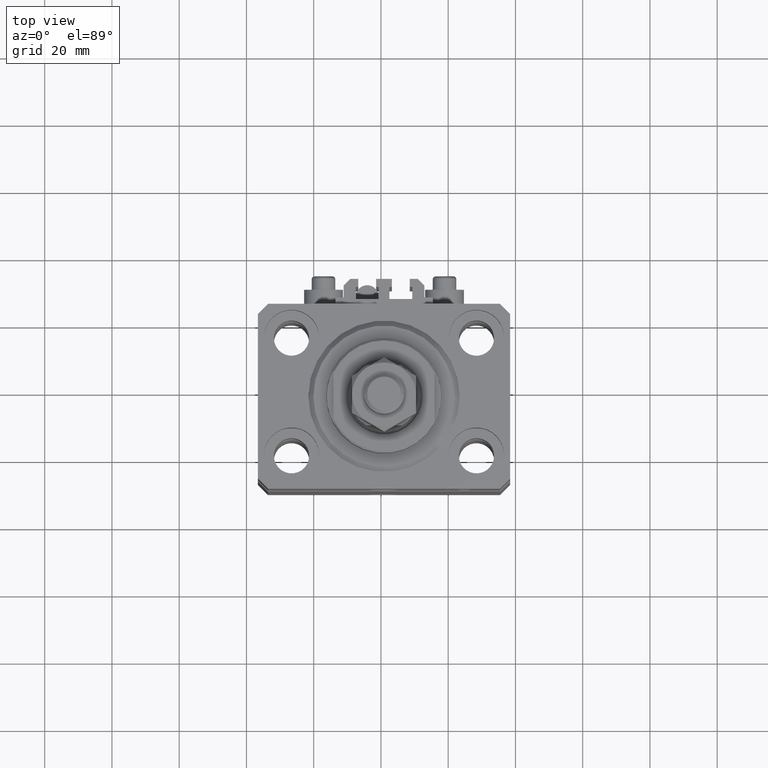
[diagram: clean part render]
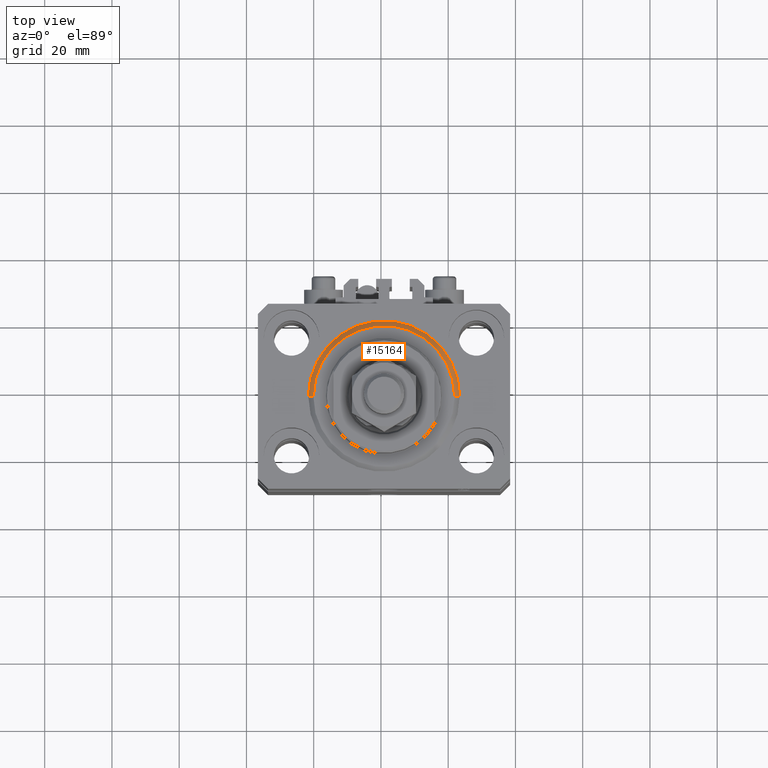
[diagram: same view with one face highlighted and labeled with its STEP entity id]
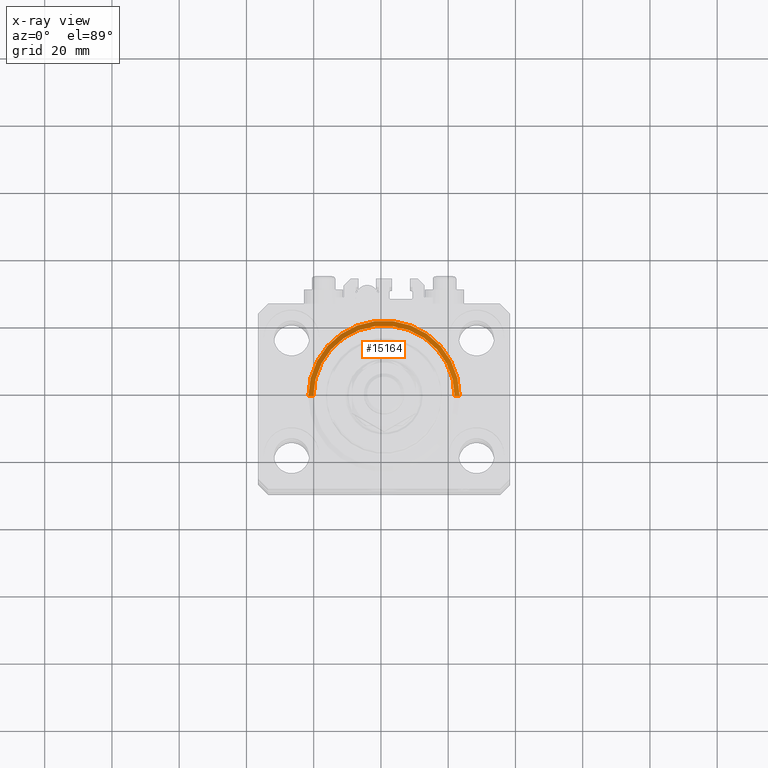
[diagram: x-ray of the same camera — body ghosted, the highlighted face saturated]
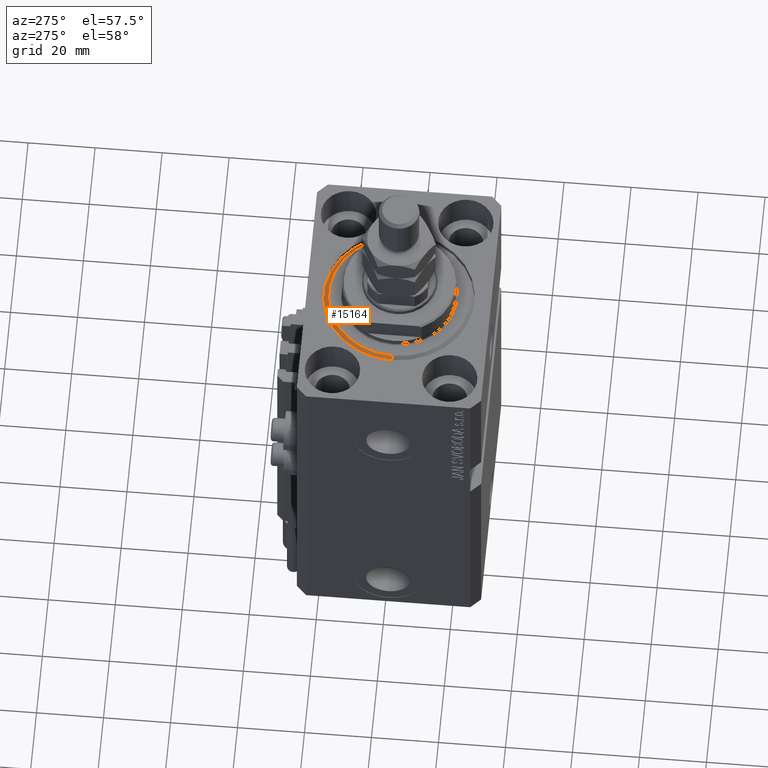
[diagram: same view with one face highlighted and labeled with its STEP entity id]
A machine part, top view. The second image highlights one B-rep face of the part: STEP entity #15164.
The next image is the same camera in x-ray: the body ghosted, the highlighted face saturated — about 0% of this face is hidden behind the body in this view.
A second angle (auxiliary view) of the same face is appended — the face is thin or edge-on in the first view.
In plain terms, the highlighted conical surface has half-angle 45 deg.
Its self-contained STEP definition (entity closure, byte-faithful):
#3301 = FACE_OUTER_BOUND ( 'NONE', #18932, .T. ) ;
#3866 = CARTESIAN_POINT ( 'NONE',  ( 22.50000000000000355, 0.000000000000000000, 1.500000000000039524 ) ) ;
#4105 = AXIS2_PLACEMENT_3D ( 'NONE', #23042, #35213, #4146 ) ;
#4146 = DIRECTION ( 'NONE',  ( 1.000000000000000000, 0.000000000000000000, 0.000000000000000000 ) ) ;
#6168 = VECTOR ( 'NONE', #23262, 1000.000000000000114 ) ;
#7009 = LINE ( 'NONE', #40321, #48604 ) ;
#7425 = ORIENTED_EDGE ( 'NONE', *, *, #41884, .F. ) ;
#8626 = CIRCLE ( 'NONE', #19725, 20.99999999999995381 ) ;
#11004 = DIRECTION ( 'NONE',  ( 1.000000000000000000, 0.000000000000000000, 0.000000000000000000 ) ) ;
#11713 = AXIS2_PLACEMENT_3D ( 'NONE', #22191, #40838, #11004 ) ;
#14628 = DIRECTION ( 'NONE',  ( -0.000000000000000000, -0.000000000000000000, -1.000000000000000000 ) ) ;
#15164 = ADVANCED_FACE ( 'NONE', ( #3301 ), #21995, .T. ) ;
#18932 = EDGE_LOOP ( 'NONE', ( #7425, #45377, #25243, #39716 ) ) ;
#19522 = CARTESIAN_POINT ( 'NONE',  ( 22.50000000000000355, 2.755455298081544383E-15, 1.500000000000039524 ) ) ;
#19725 = AXIS2_PLACEMENT_3D ( 'NONE', #22837, #14628, #26568 ) ;
#21995 = CONICAL_SURFACE ( 'NONE', #11713, 22.50000000000000355, 0.7853981633974517207 ) ;
#22162 = DIRECTION ( 'NONE',  ( -0.7071067811865500152, 8.659560562354962440E-17, 0.7071067811865451302 ) ) ;
#22191 = CARTESIAN_POINT ( 'NONE',  ( 0.000000000000000000, 0.000000000000000000, 1.500000000000039524 ) ) ;
#22739 = VERTEX_POINT ( 'NONE', #39984 ) ;
#22837 = CARTESIAN_POINT ( 'NONE',  ( 0.000000000000000000, 0.000000000000000000, 0.000000000000000000 ) ) ;
#23042 = CARTESIAN_POINT ( 'NONE',  ( 0.000000000000000000, 0.000000000000000000, 1.500000000000039524 ) ) ;
#23262 = DIRECTION ( 'NONE',  ( 0.7071067811865500152, 0.000000000000000000, 0.7071067811865451302 ) ) ;
#24728 = CARTESIAN_POINT ( 'NONE',  ( -20.99999999999995381, 2.663606788145490261E-15, 0.000000000000000000 ) ) ;
#25243 = ORIENTED_EDGE ( 'NONE', *, *, #31079, .F. ) ;
#25732 = VERTEX_POINT ( 'NONE', #48878 ) ;
#26568 = DIRECTION ( 'NONE',  ( 1.000000000000000000, 0.000000000000000000, 0.000000000000000000 ) ) ;
#26748 = LINE ( 'NONE', #3866, #6168 ) ;
#31079 = EDGE_CURVE ( 'NONE', #39204, #25732, #32669, .T. ) ;
#31520 = EDGE_CURVE ( 'NONE', #39909, #25732, #7009, .T. ) ;
#32669 = CIRCLE ( 'NONE', #4105, 22.50000000000000355 ) ;
#35213 = DIRECTION ( 'NONE',  ( -0.000000000000000000, -0.000000000000000000, 1.000000000000000000 ) ) ;
#39159 = EDGE_CURVE ( 'NONE', #22739, #39204, #26748, .T. ) ;
#39204 = VERTEX_POINT ( 'NONE', #19522 ) ;
#39716 = ORIENTED_EDGE ( 'NONE', *, *, #39159, .F. ) ;
#39909 = VERTEX_POINT ( 'NONE', #24728 ) ;
#39984 = CARTESIAN_POINT ( 'NONE',  ( 20.99999999999995381, 0.000000000000000000, 0.000000000000000000 ) ) ;
#40321 = CARTESIAN_POINT ( 'NONE',  ( -22.50000000000000355, 2.755455298081545172E-15, 1.500000000000039524 ) ) ;
#40838 = DIRECTION ( 'NONE',  ( -0.000000000000000000, -0.000000000000000000, 1.000000000000000000 ) ) ;
#41884 = EDGE_CURVE ( 'NONE', #39909, #22739, #8626, .T. ) ;
#45377 = ORIENTED_EDGE ( 'NONE', *, *, #31520, .T. ) ;
#48604 = VECTOR ( 'NONE', #22162, 1000.000000000000114 ) ;
#48878 = CARTESIAN_POINT ( 'NONE',  ( -22.50000000000000355, 0.000000000000000000, 1.500000000000039524 ) ) ;